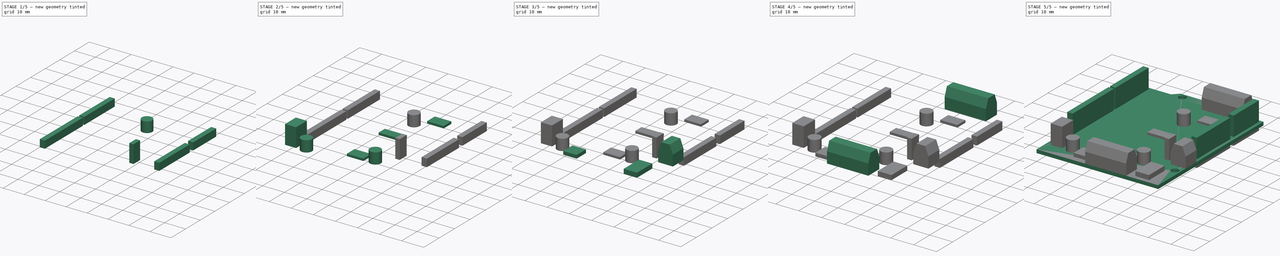
[diagram: build sequence overview — one tinted view per stage of 5, left to right]
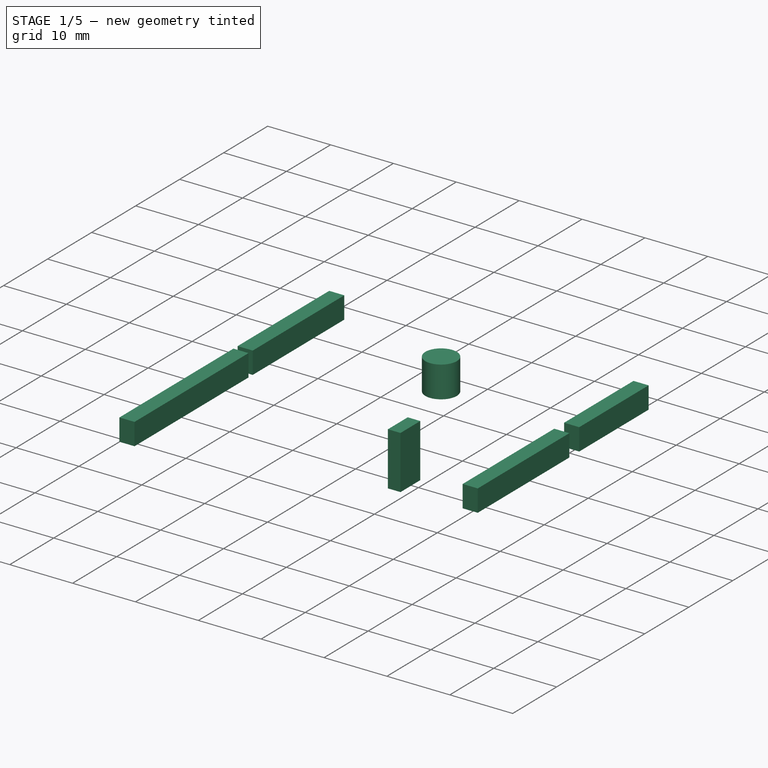
[diagram: stage 1 of 5 — iso view after this stage's code; geometry added in this stage tinted green]
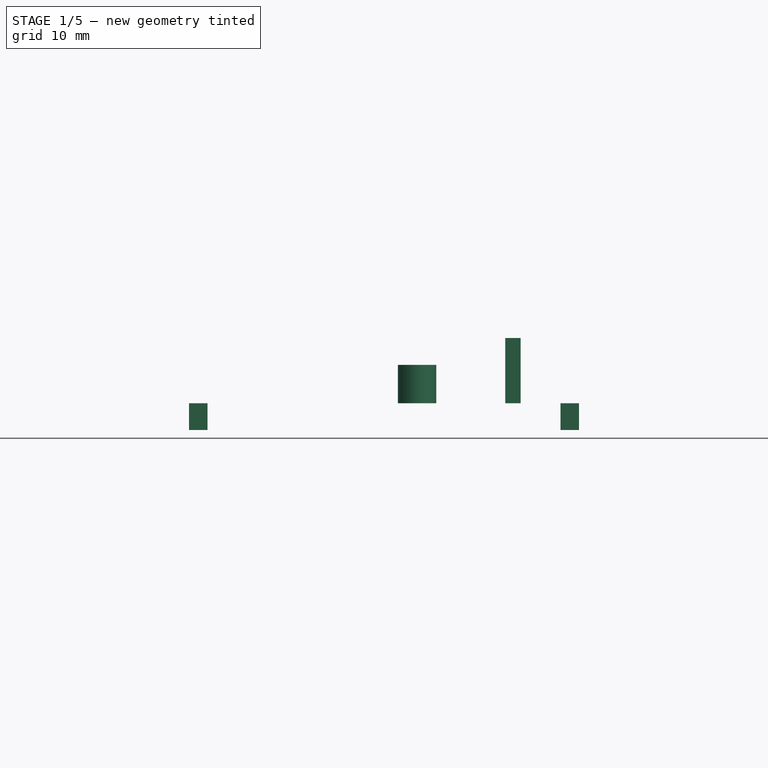
[diagram: stage 1 of 5 — front view after this stage's code; geometry added in this stage tinted green]
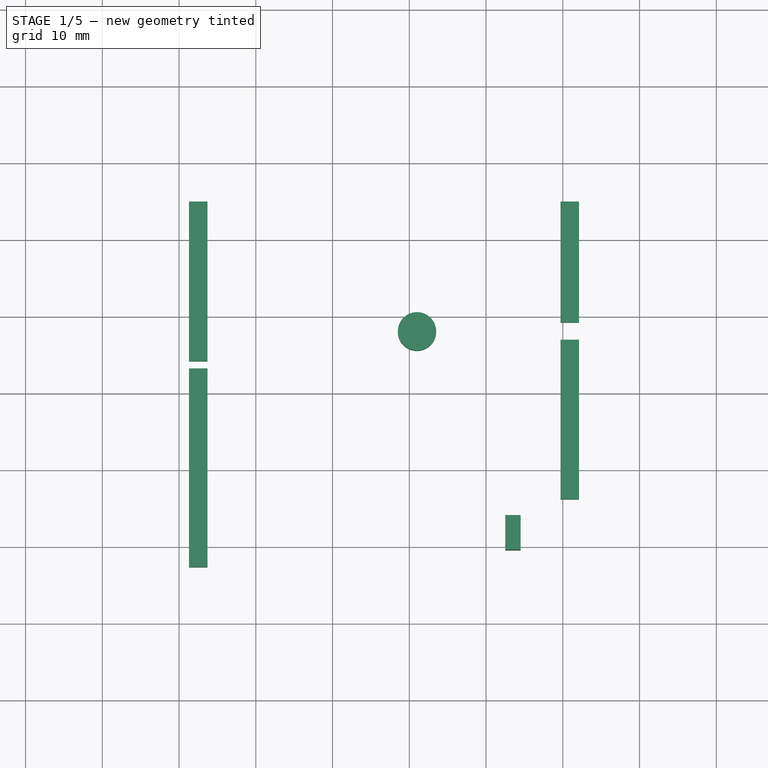
[diagram: stage 1 of 5 — top view after this stage's code; geometry added in this stage tinted green]
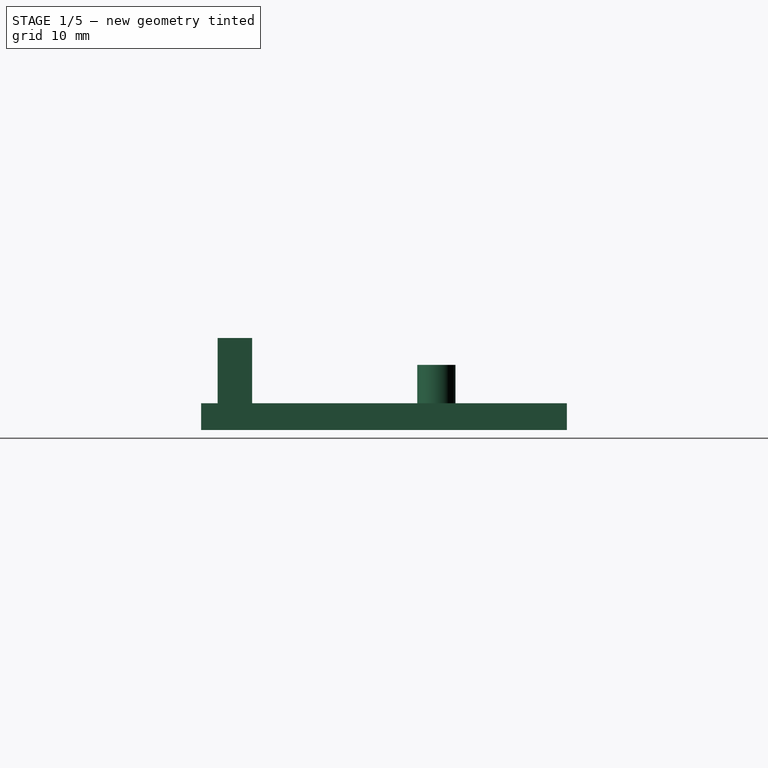
[diagram: stage 1 of 5 — right view after this stage's code; geometry added in this stage tinted green]
FCSTD DOCUMENT  (FreeCAD 0.19R24276 (Git))
Label: Adafruit_MotorShield
License: All rights reserved
LicenseURL: http://en.wikipedia.org/wiki/All_rights_reserved
objects: Sketcher::SketchObject×23, PartDesign::Pad×22, PartDesign::Body×22, PartDesign::Chamfer×6, PartDesign::Pocket×1, App::Part×1
note: 103 computed .brp shape members not serialized (recipe doc carries the construction recipe); baked Part::Feature solids carry a one-line shape summary decoded from their .brp

FEATURE [PartDesign::Body] Body015  label="Cap2"
  Group = -> [Sketch016,Pad015]
  Origin = -> Origin016
  Tip = -> Pad015
FEATURE [Sketcher::SketchObject] Sketch017
  FullyConstrained = true
  MapMode = 5
  Support = -> [XY_Plane017]
  sketch-geometry (1):
    g0: Circle CenterX=31 CenterY=48 CenterZ=0 NormalX=0 NormalY=0 NormalZ=1 AngleXU=0 Radius=2.5
  constraints (3):
    c: Diameter(g0) = 5
    c: DistanceX(g-1,g0) = 31
    c: DistanceY(g-1,g0) = 48
FEATURE [PartDesign::Pad] Pad016
  Direction = (1,1,1)
  Length = 5
  Length2 = 100
  Profile = -> Sketch017
  Type = 0
FEATURE [PartDesign::Body] Body016  label="Cap3"
  Group = -> [Sketch017,Pad016]
  Origin = -> Origin017
  Tip = -> Pad016
FEATURE [Sketcher::SketchObject] Sketch018
  FullyConstrained = true
  MapMode = 5
  Support = -> [XY_Plane018]
  sketch-geometry (4):
    g0: LineSegment StartX=44.5 StartY=24 StartZ=0 EndX=42.5 EndY=24 EndZ=0
    g1: LineSegment StartX=42.5 StartY=24 StartZ=0 EndX=42.5 EndY=19.5 EndZ=0
    g2: LineSegment StartX=42.5 StartY=19.5 StartZ=0 EndX=44.5 EndY=19.5 EndZ=0
    g3: LineSegment StartX=44.5 StartY=19.5 StartZ=0 EndX=44.5 EndY=24 EndZ=0
  constraints (12):
    c: Coincident(g0,g1)
    c: Coincident(g1,g2)
    c: Coincident(g2,g3)
    c: Coincident(g3,g0)
    c: Horizontal(g0)
    c: Horizontal(g2)
    c: Vertical(g1)
    c: Vertical(g3)
    c: Distance(g1) = 4.5
    c: Distance(g0) = 2
    c: DistanceY(g-1,g0) = 24
    c: DistanceX(g-1,g0) = 44.5
FEATURE [PartDesign::Pad] Pad017
  Direction = (1,1,1)
  Length = 8.5
  Length2 = 100
  Profile = -> Sketch018
  Type = 0
FEATURE [PartDesign::Body] Body017  label="PowerJumper"
  Group = -> [Sketch018,Pad017]
  Origin = -> Origin018
  Tip = -> Pad017
FEATURE [Sketcher::SketchObject] Sketch019
  FullyConstrained = true
  MapMode = 5
  Support = -> [XY_Plane019]
  sketch-geometry (4):
    g0: LineSegment StartX=1.3 StartY=43.25 StartZ=0 EndX=3.7 EndY=43.25 EndZ=0
    g1: LineSegment StartX=3.7 StartY=43.25 StartZ=0 EndX=3.7 EndY=17.35 EndZ=0
    g2: LineSegment StartX=3.7 StartY=17.35 StartZ=0 EndX=1.3 EndY=17.35 EndZ=0
    g3: LineSegment StartX=1.3 StartY=17.35 StartZ=0 EndX=1.3 EndY=43.25 EndZ=0
  constraints (12):
    c: Coincident(g0,g1)
    c: Coincident(g1,g2)
    c: Coincident(g2,g3)
    c: Coincident(g3,g0)
    c: Horizontal(g0)
    c: Horizontal(g2)
    c: Vertical(g1)
    c: Vertical(g3)
    c: Distance(g0) = 2.4
    c: DistanceX(g-1,g2) = 1.3
    c: DistanceY(g1,g0) = 25.9
    c: DistanceY(g-1,g0) = 43.25
FEATURE [PartDesign::Pad] Pad018
  Direction = (1,1,1)
  Length = 3.5
  Length2 = 100
  Profile = -> Sketch019
  Reversed = true
  Type = 0
FEATURE [PartDesign::Body] Body018  label="Pins1"
  Group = -> [Sketch019,Pad018]
  Origin = -> Origin019
  Tip = -> Pad018
FEATURE [Sketcher::SketchObject] Sketch020
  FullyConstrained = true
  MapMode = 5
  Support = -> [XY_Plane020]
  sketch-geometry (4):
    g0: LineSegment StartX=1.3 StartY=65 StartZ=0 EndX=3.7 EndY=65 EndZ=0
    g1: LineSegment StartX=3.7 StartY=65 StartZ=0 EndX=3.7 EndY=44.2 EndZ=0
    g2: LineSegment StartX=3.7 StartY=44.2 StartZ=0 EndX=1.3 EndY=44.2 EndZ=0
    g3: LineSegment StartX=1.3 StartY=44.2 StartZ=0 EndX=1.3 EndY=65 EndZ=0
  constraints (12):
    c: Coincident(g0,g1)
    c: Coincident(g1,g2)
    c: Coincident(g2,g3)
    c: Coincident(g3,g0)
    c: Horizontal(g0)
    c: Horizontal(g2)
    c: Vertical(g1)
    c: Vertical(g3)
    c: Distance(g0) = 2.4
    c: DistanceX(g-1,g0) = 1.3
    c: Distance(g1) = 20.8
    c: DistanceY(g-1,g0) = 65
FEATURE [PartDesign::Pad] Pad019
  Direction = (1,1,1)
  Length = 3.5
  Length2 = 100
  Profile = -> Sketch020
  Reversed = true
  Type = 0
FEATURE [PartDesign::Body] Body019  label="Pins2"
  Group = -> [Sketch020,Pad019]
  Origin = -> Origin020
  Tip = -> Pad019
FEATURE [Sketcher::SketchObject] Sketch021
  FullyConstrained = true
  MapMode = 5
  Support = -> [XY_Plane021]
  sketch-geometry (4):
    g0: LineSegment StartX=49.7 StartY=47 StartZ=0 EndX=52.1 EndY=47 EndZ=0
    g1: LineSegment StartX=52.1 StartY=47 StartZ=0 EndX=52.1 EndY=26.2 EndZ=0
    g2: LineSegment StartX=52.1 StartY=26.2 StartZ=0 EndX=49.7 EndY=26.2 EndZ=0
    g3: LineSegment StartX=49.7 StartY=26.2 StartZ=0 EndX=49.7 EndY=47 EndZ=0
  constraints (12):
    c: Coincident(g0,g1)
    c: Coincident(g1,g2)
    c: Coincident(g2,g3)
    c: Coincident(g3,g0)
    c: Horizontal(g0)
    c: Horizontal(g2)
    c: Vertical(g1)
    c: Vertical(g3)
    c: Distance(g0) = 2.4
    c: DistanceX(g-1,g1) = 52.1
    c: Distance(g1) = 20.8
    c: DistanceY(g-1,g0) = 47
FEATURE [PartDesign::Pad] Pad020
  Direction = (1,1,1)
  Length = 3.5
  Length2 = 100
  Profile = -> Sketch021
  Reversed = true
  Type = 0
FEATURE [PartDesign::Body] Body020  label="Pins3"
  Group = -> [Sketch021,Pad020]
  Origin = -> Origin021
  Tip = -> Pad020
FEATURE [Sketcher::SketchObject] Sketch022
  FullyConstrained = true
  MapMode = 5
  Support = -> [XY_Plane022]
  sketch-geometry (4):
    g0: LineSegment StartX=49.7 StartY=65 StartZ=0 EndX=52.1 EndY=65 EndZ=0
    g1: LineSegment StartX=52.1 StartY=65 StartZ=0 EndX=52.1 EndY=49.25 EndZ=0
    g2: LineSegment StartX=52.1 StartY=49.25 StartZ=0 EndX=49.7 EndY=49.25 EndZ=0
    g3: LineSegment StartX=49.7 StartY=49.25 StartZ=0 EndX=49.7 EndY=65 EndZ=0
  constraints (12):
    c: Coincident(g0,g1)
    c: Coincident(g1,g2)
    c: Coincident(g2,g3)
    c: Coincident(g3,g0)
    c: Horizontal(g0)
    c: Horizontal(g2)
    c: Vertical(g1)
    c: Vertical(g3)
    c: Distance(g0) = 2.4
    c: DistanceX(g-1,g1) = 52.1
    c: DistanceY(g-1,g0) = 65
    c: Distance(g3) = 15.75
FEATURE [PartDesign::Pad] Pad021
  Direction = (1,1,1)
  Length = 3.5
  Length2 = 100
  Profile = -> Sketch022
  Reversed = true
  Type = 0
FEATURE [PartDesign::Body] Body021  label="Pin4"
  Group = -> [Sketch022,Pad021]
  Origin = -> Origin022
  Tip = -> Pad021
FEATURE [App::Part] Part  label="MotorShield"
  Group = -> [Body,Body001,Body002,Body003,Body004,Body005,Body006,Body007,Body008,Body009,Body010,Body011,Body012,Body013,Body014,Body015,Body016,Body017,Body018,Body019,Body020,Body021]
  Origin = -> Origin
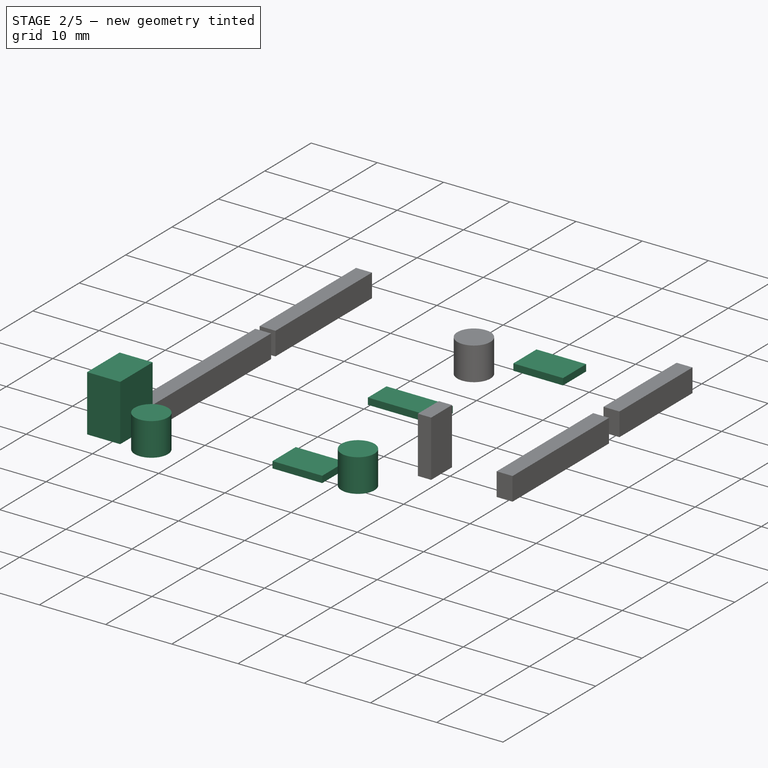
[diagram: stage 2 of 5 — iso view after this stage's code; geometry added in this stage tinted green]
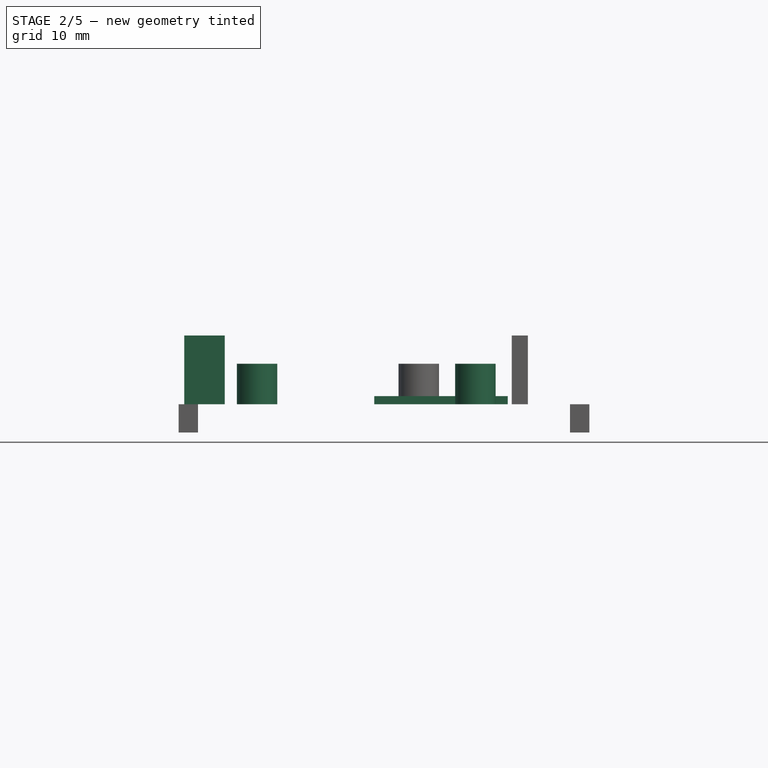
[diagram: stage 2 of 5 — front view after this stage's code; geometry added in this stage tinted green]
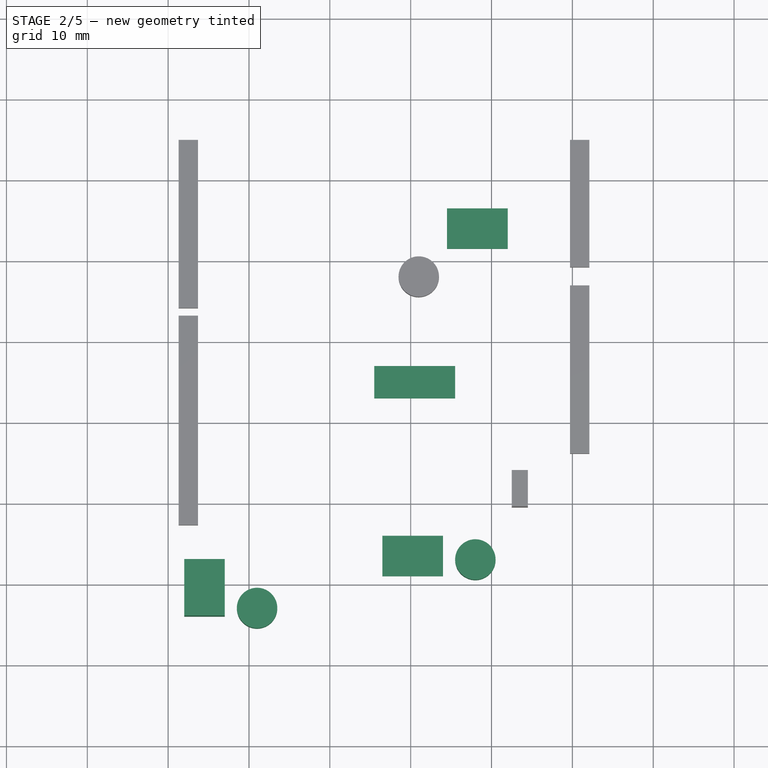
[diagram: stage 2 of 5 — top view after this stage's code; geometry added in this stage tinted green]
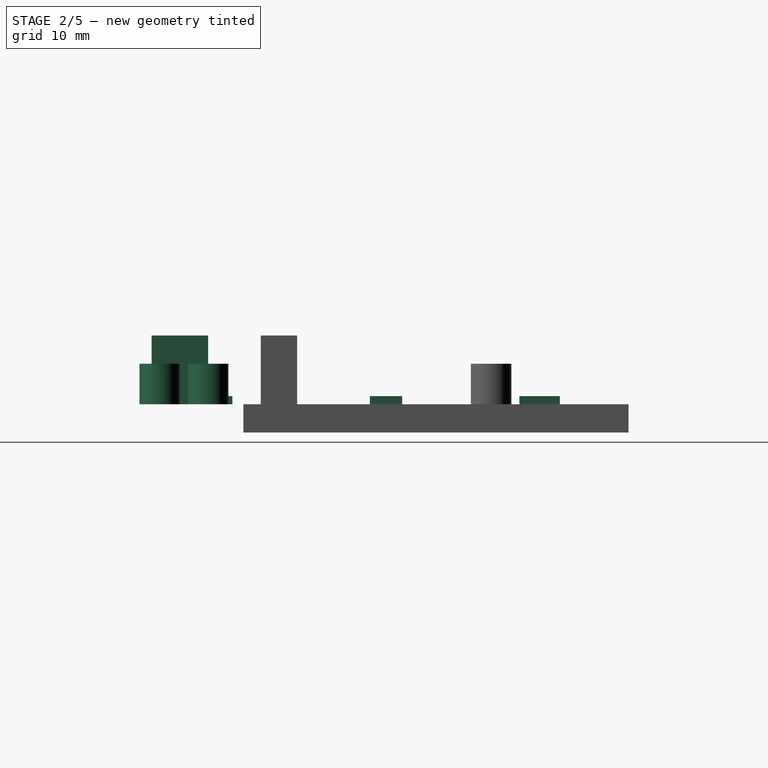
[diagram: stage 2 of 5 — right view after this stage's code; geometry added in this stage tinted green]
FEATURE [PartDesign::Body] Body009  label="FET"
  Group = -> [Sketch010,Pad009]
  Origin = -> Origin010
  Tip = -> Pad009
FEATURE [Sketcher::SketchObject] Sketch011
  FullyConstrained = true
  MapMode = 5
  Support = -> [XY_Plane011]
  sketch-geometry (4):
    g0: LineSegment StartX=34.5 StartY=56.5 StartZ=0 EndX=42 EndY=56.5 EndZ=0
    g1: LineSegment StartX=42 StartY=56.5 StartZ=0 EndX=42 EndY=51.5 EndZ=0
    g2: LineSegment StartX=42 StartY=51.5 StartZ=0 EndX=34.5 EndY=51.5 EndZ=0
    g3: LineSegment StartX=34.5 StartY=51.5 StartZ=0 EndX=34.5 EndY=56.5 EndZ=0
  constraints (12):
    c: Coincident(g0,g1)
    c: Coincident(g1,g2)
    c: Coincident(g2,g3)
    c: Coincident(g3,g0)
    c: Horizontal(g0)
    c: Horizontal(g2)
    c: Vertical(g1)
    c: Vertical(g3)
    c: Distance(g1) = 5
    c: Distance(g0) = 7.5
    c: DistanceX(g-1,g0) = 42
    c: DistanceY(g-1,g0) = 56.5
FEATURE [PartDesign::Pad] Pad010
  Direction = (1,1,1)
  Length = 1
  Length2 = 100
  Profile = -> Sketch011
  Type = 0
FEATURE [PartDesign::Body] Body010  label="HBridge1"
  Group = -> [Sketch011,Pad010]
  Origin = -> Origin011
  Tip = -> Pad010
FEATURE [Sketcher::SketchObject] Sketch012
  FullyConstrained = true
  MapMode = 5
  Support = -> [XY_Plane012]
  sketch-geometry (4):
    g0: LineSegment StartX=26.5 StartY=16 StartZ=0 EndX=34 EndY=16 EndZ=0
    g1: LineSegment StartX=34 StartY=16 StartZ=0 EndX=34 EndY=11 EndZ=0
    g2: LineSegment StartX=34 StartY=11 StartZ=0 EndX=26.5 EndY=11 EndZ=0
    g3: LineSegment StartX=26.5 StartY=11 StartZ=0 EndX=26.5 EndY=16 EndZ=0
  constraints (12):
    c: Coincident(g0,g1)
    c: Coincident(g1,g2)
    c: Coincident(g2,g3)
    c: Coincident(g3,g0)
    c: Horizontal(g0)
    c: Horizontal(g2)
    c: Vertical(g1)
    c: Vertical(g3)
    c: Distance(g0) = 7.5
    c: Distance(g1) = 5
    c: DistanceX(g-1,g0) = 34
    c: DistanceY(g-1,g0) = 16
FEATURE [PartDesign::Pad] Pad011
  Direction = (1,1,1)
  Length = 1
  Length2 = 100
  Profile = -> Sketch012
  Type = 0
FEATURE [PartDesign::Body] Body011  label="HBridge2"
  Group = -> [Sketch012,Pad011]
  Origin = -> Origin012
  Tip = -> Pad011
FEATURE [Sketcher::SketchObject] Sketch013
  FullyConstrained = true
  MapMode = 5
  Support = -> [XY_Plane013]
  sketch-geometry (4):
    g0: LineSegment StartX=25.5 StartY=37 StartZ=0 EndX=35.5 EndY=37 EndZ=0
    g1: LineSegment StartX=35.5 StartY=37 StartZ=0 EndX=35.5 EndY=33 EndZ=0
    g2: LineSegment StartX=35.5 StartY=33 StartZ=0 EndX=25.5 EndY=33 EndZ=0
    g3: LineSegment StartX=25.5 StartY=33 StartZ=0 EndX=25.5 EndY=37 EndZ=0
  constraints (12):
    c: Coincident(g0,g1)
    c: Coincident(g1,g2)
    c: Coincident(g2,g3)
    c: Coincident(g3,g0)
    c: Horizontal(g0)
    c: Horizontal(g2)
    c: Vertical(g1)
    c: Vertical(g3)
    c: Distance(g0) = 10
    c: Distance(g1) = 4
    c: DistanceX(g-1,g0) = 35.5
    c: DistanceY(g-1,g0) = 37
FEATURE [PartDesign::Pad] Pad012
  Direction = (1,1,1)
  Length = 1
  Length2 = 100
  Profile = -> Sketch013
  Type = 0
FEATURE [PartDesign::Body] Body012  label="Chip"
  Group = -> [Sketch013,Pad012]
  Origin = -> Origin013
  Tip = -> Pad012
FEATURE [Sketcher::SketchObject] Sketch014
  FullyConstrained = true
  MapMode = 5
  Support = -> [XY_Plane014]
  sketch-geometry (4):
    g0: LineSegment StartX=2 StartY=13 StartZ=0 EndX=7 EndY=13 EndZ=0
    g1: LineSegment StartX=7 StartY=13 StartZ=0 EndX=7 EndY=6 EndZ=0
    g2: LineSegment StartX=7 StartY=6 StartZ=0 EndX=2 EndY=6 EndZ=0
    g3: LineSegment StartX=2 StartY=6 StartZ=0 EndX=2 EndY=13 EndZ=0
  constraints (12):
    c: Coincident(g0,g1)
    c: Coincident(g1,g2)
    c: Coincident(g2,g3)
    c: Coincident(g3,g0)
    c: Horizontal(g0)
    c: Horizontal(g2)
    c: Vertical(g1)
    c: Vertical(g3)
    c: Distance(g1) = 7
    c: Distance(g0) = 5
    c: DistanceX(g-1,g1) = 7
    c: DistanceY(g-1,g0) = 13
FEATURE [PartDesign::Pad] Pad013
  Direction = (1,1,1)
  Length = 8.5
  Length2 = 100
  Profile = -> Sketch014
  Type = 0
FEATURE [PartDesign::Body] Body013  label="ServoPins"
  Group = -> [Sketch014,Pad013]
  Origin = -> Origin014
  Tip = -> Pad013
FEATURE [Sketcher::SketchObject] Sketch015
  FullyConstrained = true
  MapMode = 5
  Support = -> [XY_Plane015]
  sketch-geometry (1):
    g0: Circle CenterX=11 CenterY=7 CenterZ=0 NormalX=0 NormalY=0 NormalZ=1 AngleXU=0 Radius=2.5
  constraints (3):
    c: Diameter(g0) = 5
    c: DistanceX(g-1,g0) = 11
    c: DistanceY(g-1,g0) = 7
FEATURE [PartDesign::Pad] Pad014
  Direction = (1,1,1)
  Length = 5
  Length2 = 100
  Profile = -> Sketch015
  Type = 0
FEATURE [PartDesign::Body] Body014  label="Cap1"
  Group = -> [Sketch015,Pad014]
  Origin = -> Origin015
  Tip = -> Pad014
FEATURE [Sketcher::SketchObject] Sketch016
  FullyConstrained = true
  MapMode = 5
  Support = -> [XY_Plane016]
  sketch-geometry (1):
    g0: Circle CenterX=38 CenterY=13 CenterZ=0 NormalX=0 NormalY=0 NormalZ=1 AngleXU=0 Radius=2.5
  constraints (3):
    c: Diameter(g0) = 5
    c: DistanceX(g-1,g0) = 38
    c: DistanceY(g-1,g0) = 13
FEATURE [PartDesign::Pad] Pad015
  Direction = (1,1,1)
  Length = 5
  Length2 = 100
  Profile = -> Sketch016
  Type = 0
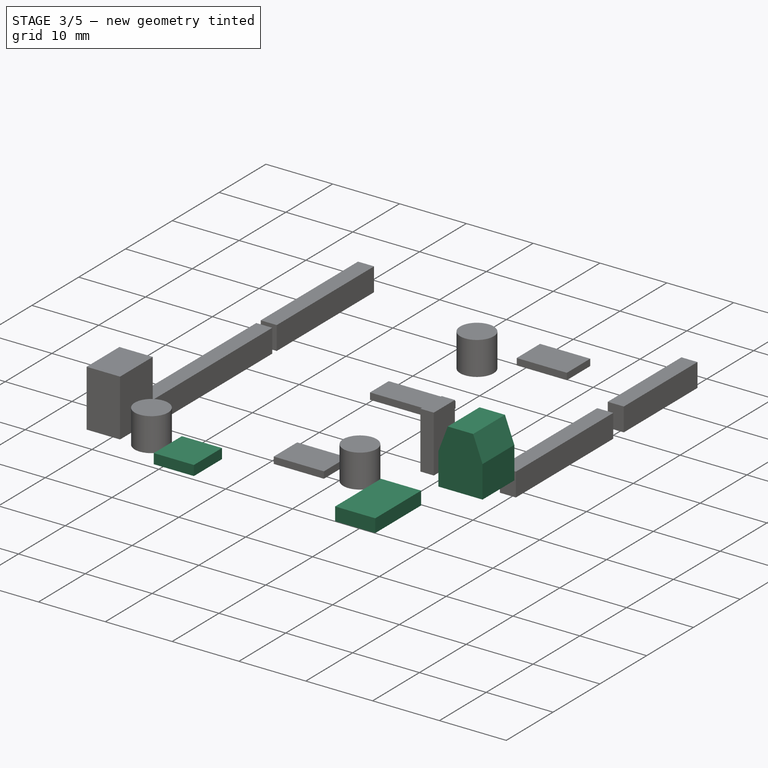
[diagram: stage 3 of 5 — iso view after this stage's code; geometry added in this stage tinted green]
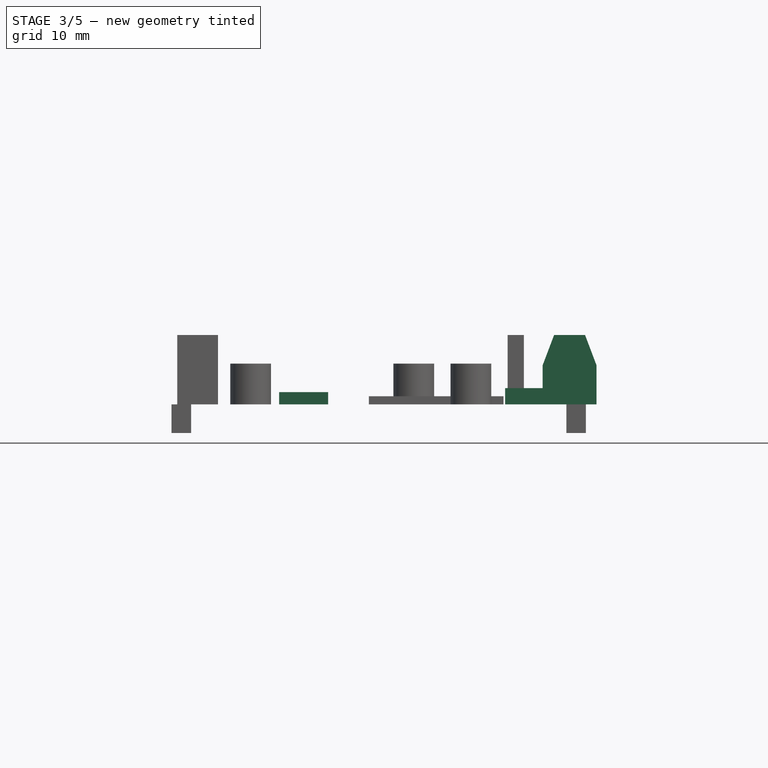
[diagram: stage 3 of 5 — front view after this stage's code; geometry added in this stage tinted green]
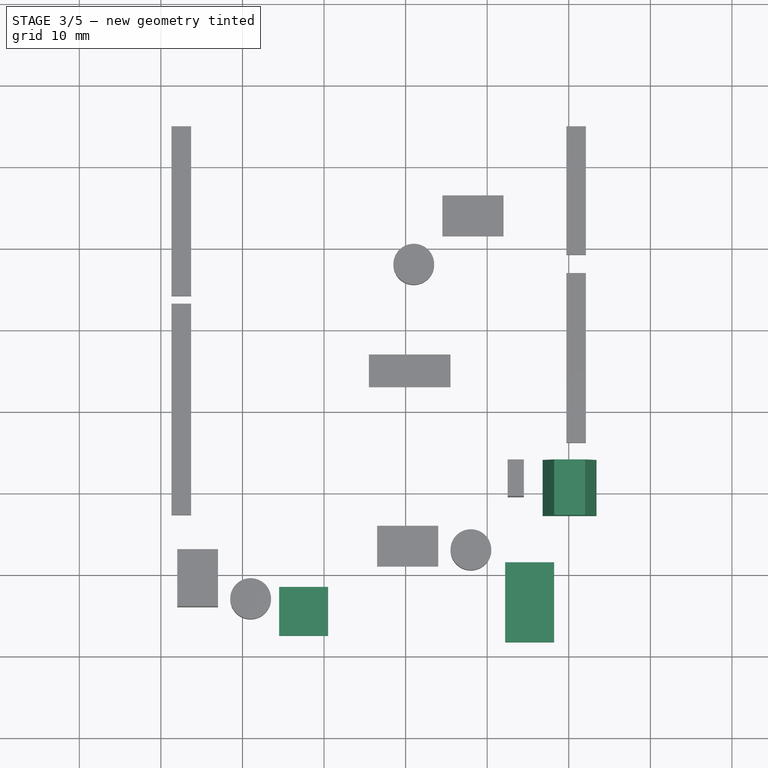
[diagram: stage 3 of 5 — top view after this stage's code; geometry added in this stage tinted green]
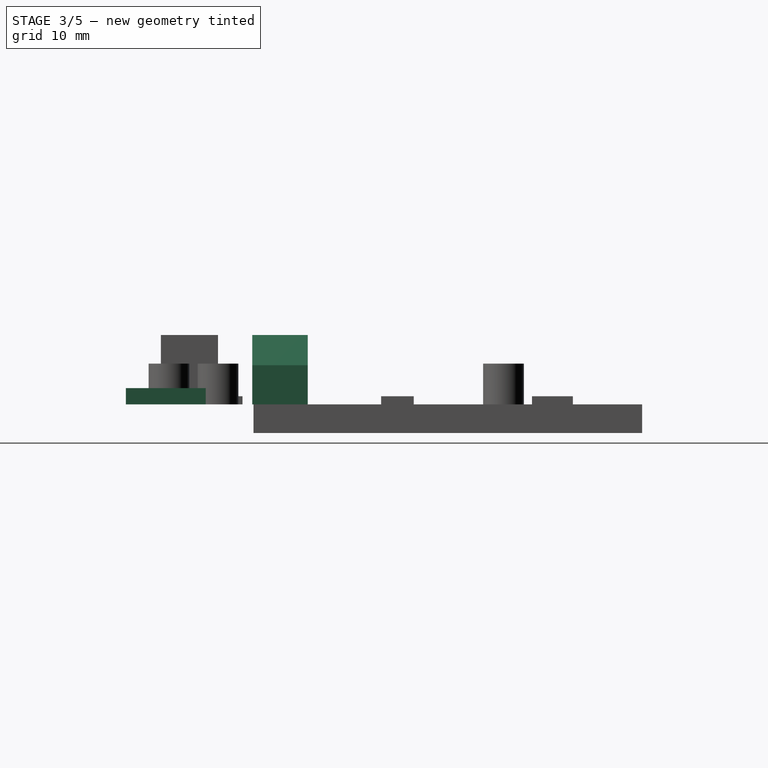
[diagram: stage 3 of 5 — right view after this stage's code; geometry added in this stage tinted green]
FEATURE [PartDesign::Body] Body006  label="M3M4Header"
  Group = -> [Sketch007,Pad006,Chamfer002,Chamfer003]
  Origin = -> Origin007
  Tip = -> Chamfer003
FEATURE [Sketcher::SketchObject] Sketch008
  FullyConstrained = true
  MapMode = 5
  Support = -> [XY_Plane008]
  sketch-geometry (4):
    g0: LineSegment StartX=46.8 StartY=24 StartZ=0 EndX=53.4 EndY=24 EndZ=0
    g1: LineSegment StartX=53.4 StartY=24 StartZ=0 EndX=53.4 EndY=17.2 EndZ=0
    g2: LineSegment StartX=53.4 StartY=17.2 StartZ=0 EndX=46.8 EndY=17.2 EndZ=0
    g3: LineSegment StartX=46.8 StartY=17.2 StartZ=0 EndX=46.8 EndY=24 EndZ=0
  constraints (12):
    c: Coincident(g0,g1)
    c: Coincident(g1,g2)
    c: Coincident(g2,g3)
    c: Coincident(g3,g0)
    c: Horizontal(g0)
    c: Horizontal(g2)
    c: Vertical(g1)
    c: Vertical(g3)
    c: DistanceY(g1,g0) = 6.8
    c: DistanceX(g0,g0) = 6.6
    c: DistanceX(g-1,g1) = 53.4
    c: DistanceY(g-1,g0) = 24
FEATURE [PartDesign::Pad] Pad007
  Direction = (1,1,1)
  Length = 8.5
  Length2 = 100
  Profile = -> Sketch008
  Type = 0
FEATURE [PartDesign::Chamfer] Chamfer004
  Angle = 45
  Base = -> Pad007 [Edge7]
  BaseFeature = -> Pad007
  ChamferType = 1
  FlipDirection = false
  Size = 3.7
  Size2 = 1.4
  SupportTransform = false
FEATURE [PartDesign::Chamfer] Chamfer005
  Angle = 45
  Base = -> Chamfer004 [Edge13]
  BaseFeature = -> Chamfer004
  ChamferType = 1
  FlipDirection = false
  Size = 1.4
  Size2 = 3.7
  SupportTransform = false
FEATURE [PartDesign::Body] Body007  label="PowerHeader"
  Group = -> [Sketch008,Pad007,Chamfer004,Chamfer005]
  Origin = -> Origin008
  Tip = -> Chamfer005
FEATURE [Sketcher::SketchObject] Sketch009
  FullyConstrained = true
  MapMode = 5
  Support = -> [XY_Plane009]
  sketch-geometry (4):
    g0: LineSegment StartX=14.5 StartY=8.5 StartZ=0 EndX=20.5 EndY=8.5 EndZ=0
    g1: LineSegment StartX=20.5 StartY=8.5 StartZ=0 EndX=20.5 EndY=2.5 EndZ=0
    g2: LineSegment StartX=20.5 StartY=2.5 StartZ=0 EndX=14.5 EndY=2.5 EndZ=0
    g3: LineSegment StartX=14.5 StartY=2.5 StartZ=0 EndX=14.5 EndY=8.5 EndZ=0
  constraints (12):
    c: Coincident(g0,g1)
    c: Coincident(g1,g2)
    c: Coincident(g2,g3)
    c: Coincident(g3,g0)
    c: Horizontal(g0)
    c: Horizontal(g2)
    c: Vertical(g1)
    c: Vertical(g3)
    c: Equal(g0,g1)
    c: Distance(g1) = 6
    c: DistanceY(g-1,g0) = 8.5
    c: DistanceX(g-1,g2) = 14.5
FEATURE [PartDesign::Pad] Pad008
  Direction = (1,1,1)
  Length = 1.5
  Length2 = 100
  Profile = -> Sketch009
  Type = 0
FEATURE [PartDesign::Body] Body008  label="ResetButton"
  Group = -> [Sketch009,Pad008]
  Origin = -> Origin009
  Tip = -> Pad008
FEATURE [Sketcher::SketchObject] Sketch010
  FullyConstrained = true
  MapMode = 5
  Support = -> [XY_Plane010]
  sketch-geometry (4):
    g0: LineSegment StartX=42.2 StartY=11.5 StartZ=0 EndX=48.2 EndY=11.5 EndZ=0
    g1: LineSegment StartX=48.2 StartY=11.5 StartZ=0 EndX=48.2 EndY=1.7 EndZ=0
    g2: LineSegment StartX=48.2 StartY=1.7 StartZ=0 EndX=42.2 EndY=1.7 EndZ=0
    g3: LineSegment StartX=42.2 StartY=1.7 StartZ=0 EndX=42.2 EndY=11.5 EndZ=0
  constraints (12):
    c: Coincident(g0,g1)
    c: Coincident(g1,g2)
    c: Coincident(g2,g3)
    c: Coincident(g3,g0)
    c: Horizontal(g0)
    c: Horizontal(g2)
    c: Vertical(g1)
    c: Vertical(g3)
    c: DistanceY(g1,g0) = 9.8
    c: DistanceX(g0,g0) = 6
    c: DistanceY(g-1,g0) = 11.5
    c: DistanceX(g-1,g1) = 48.2
FEATURE [PartDesign::Pad] Pad009
  Direction = (1,1,1)
  Length = 2
  Length2 = 100
  Profile = -> Sketch010
  Type = 0
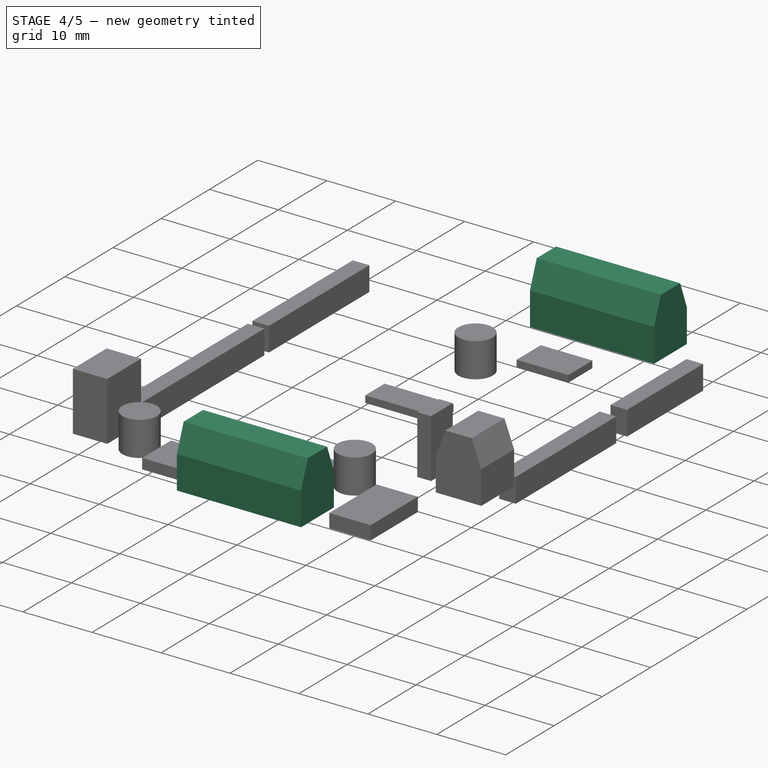
[diagram: stage 4 of 5 — iso view after this stage's code; geometry added in this stage tinted green]
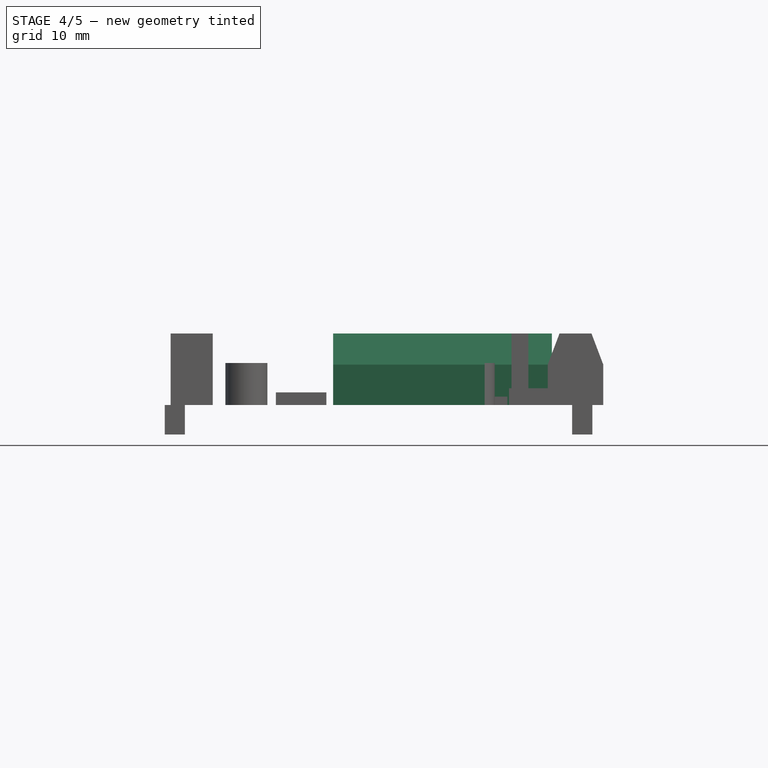
[diagram: stage 4 of 5 — front view after this stage's code; geometry added in this stage tinted green]
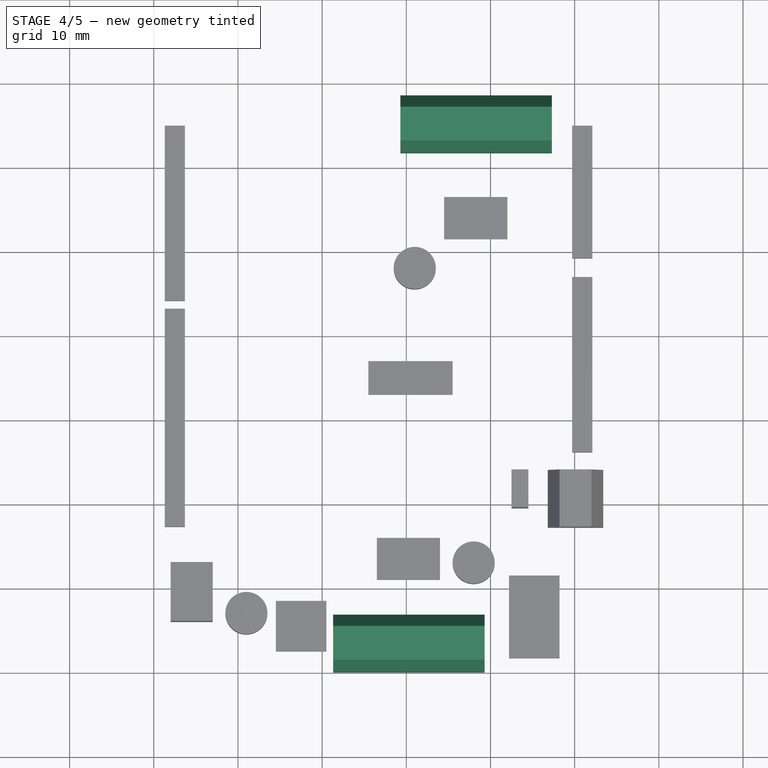
[diagram: stage 4 of 5 — top view after this stage's code; geometry added in this stage tinted green]
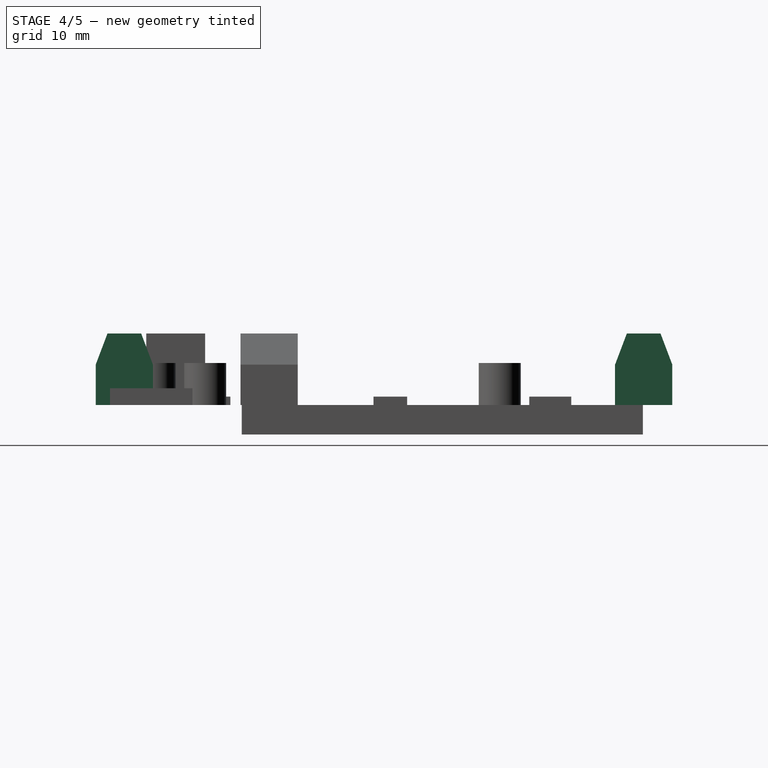
[diagram: stage 4 of 5 — right view after this stage's code; geometry added in this stage tinted green]
FEATURE [PartDesign::Body] Body004  label="Header4_6pin"
  Group = -> [Sketch005,Pad004]
  Origin = -> Origin005
  Tip = -> Pad004
FEATURE [Sketcher::SketchObject] Sketch006
  FullyConstrained = false
  MapMode = 5
  Support = -> [XY_Plane006]
  sketch-geometry (5):
    g0: LineSegment StartX=21.3 StartY=6.8 StartZ=0 EndX=39.3 EndY=6.8 EndZ=0
    g1: LineSegment StartX=39.3 StartY=6.8 StartZ=0 EndX=39.3 EndY=0 EndZ=0
    g2: LineSegment StartX=39.3 StartY=0 StartZ=0 EndX=21.3 EndY=0 EndZ=0
    g3: LineSegment StartX=21.3 StartY=0 StartZ=0 EndX=21.3 EndY=6.8 EndZ=0
    g4: LineSegment StartX=0 StartY=0 StartZ=0 EndX=62.8134 EndY=0 EndZ=0
  constraints (14):
    c: Coincident(g0,g1)
    c: Coincident(g1,g2)
    c: Coincident(g2,g3)
    c: Coincident(g3,g0)
    c: Horizontal(g0)
    c: Horizontal(g2)
    c: Vertical(g1)
    c: Vertical(g3)
    c: DistanceY(g1,g0) = 6.8
    c: DistanceX(g0,g0) = 18
    c: DistanceX(g-1,g1) = 39.3
    c: Coincident(g4,g-1)
    c: PointOnObject(g4,g-1)
    c: PointOnObject(g2,g4)
FEATURE [PartDesign::Pad] Pad005
  Direction = (1,1,1)
  Length = 8.5
  Length2 = 100
  Profile = -> Sketch006
  Type = 0
FEATURE [PartDesign::Chamfer] Chamfer
  Angle = 45
  Base = -> Pad005 [Edge10]
  BaseFeature = -> Pad005
  ChamferType = 1
  FlipDirection = false
  Size = 3.7
  Size2 = 1.4
  SupportTransform = false
FEATURE [PartDesign::Chamfer] Chamfer001
  Angle = 45
  Base = -> Chamfer [Edge13]
  BaseFeature = -> Chamfer
  ChamferType = 1
  FlipDirection = false
  Size = 1.4
  Size2 = 3.7
  SupportTransform = false
FEATURE [PartDesign::Body] Body005  label="M1M2Header"
  Group = -> [Sketch006,Pad005,Chamfer,Chamfer001]
  Origin = -> Origin006
  Tip = -> Chamfer001
FEATURE [Sketcher::SketchObject] Sketch007
  FullyConstrained = true
  MapMode = 5
  Support = -> [XY_Plane007]
  sketch-geometry (4):
    g0: LineSegment StartX=29.3 StartY=68.5 StartZ=0 EndX=47.3 EndY=68.5 EndZ=0
    g1: LineSegment StartX=47.3 StartY=68.5 StartZ=0 EndX=47.3 EndY=61.7 EndZ=0
    g2: LineSegment StartX=47.3 StartY=61.7 StartZ=0 EndX=29.3 EndY=61.7 EndZ=0
    g3: LineSegment StartX=29.3 StartY=61.7 StartZ=0 EndX=29.3 EndY=68.5 EndZ=0
  constraints (12):
    c: Coincident(g0,g1)
    c: Coincident(g1,g2)
    c: Coincident(g2,g3)
    c: Coincident(g3,g0)
    c: Horizontal(g0)
    c: Horizontal(g2)
    c: Vertical(g1)
    c: Vertical(g3)
    c: DistanceX(g0,g0) = 18
    c: DistanceY(g1,g0) = 6.8
    c: DistanceY(g-1,g0) = 68.5
    c: DistanceX(g-1,g0) = 47.3
FEATURE [PartDesign::Pad] Pad006
  Direction = (1,1,1)
  Length = 8.5
  Length2 = 100
  Profile = -> Sketch007
  Type = 0
FEATURE [PartDesign::Chamfer] Chamfer002
  Angle = 45
  Base = -> Pad006 [Edge4]
  BaseFeature = -> Pad006
  ChamferType = 1
  FlipDirection = false
  Size = 3.7
  Size2 = 1.4
  SupportTransform = false
FEATURE [PartDesign::Chamfer] Chamfer003
  Angle = 45
  Base = -> Chamfer002 [Edge15]
  BaseFeature = -> Chamfer002
  ChamferType = 1
  FlipDirection = false
  Size = 1.4
  Size2 = 3.7
  SupportTransform = false
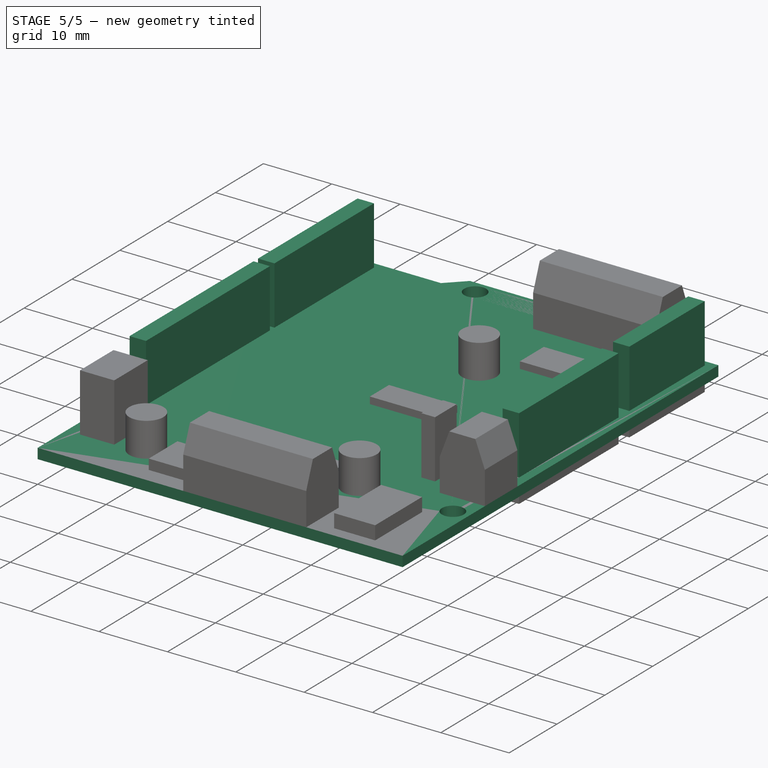
[diagram: stage 5 of 5 — iso view after this stage's code; geometry added in this stage tinted green]
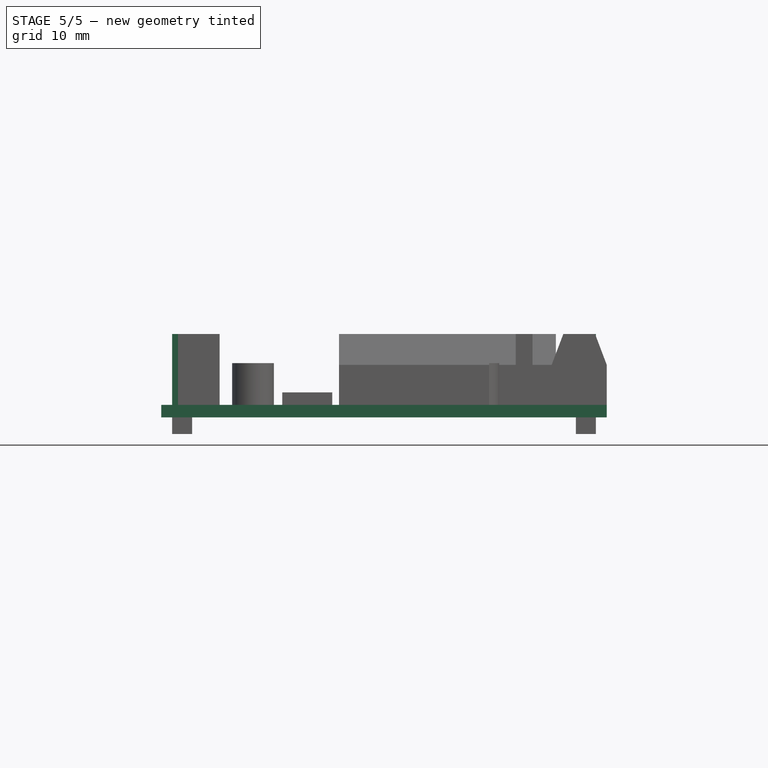
[diagram: stage 5 of 5 — front view after this stage's code; geometry added in this stage tinted green]
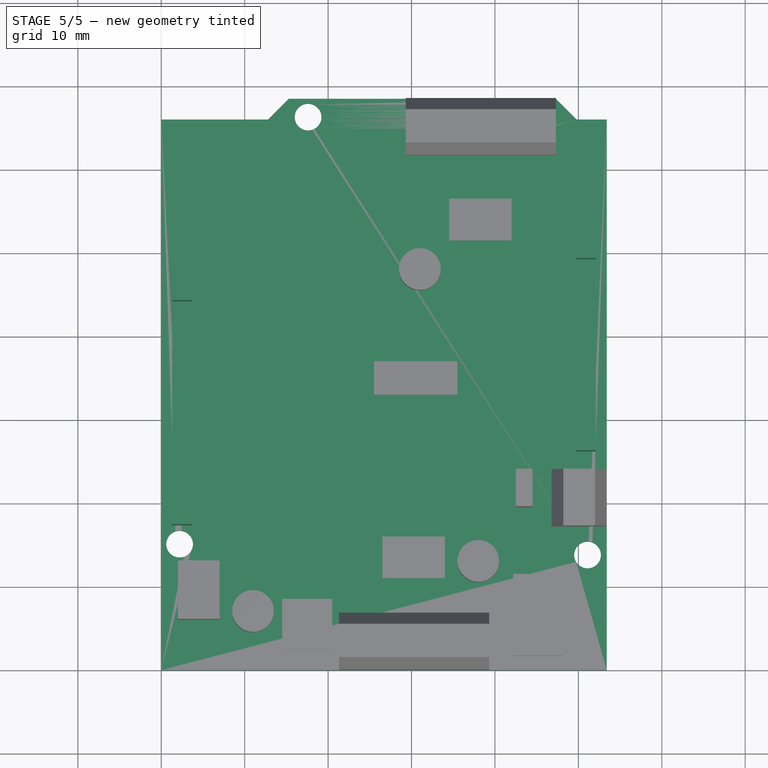
[diagram: stage 5 of 5 — top view after this stage's code; geometry added in this stage tinted green]
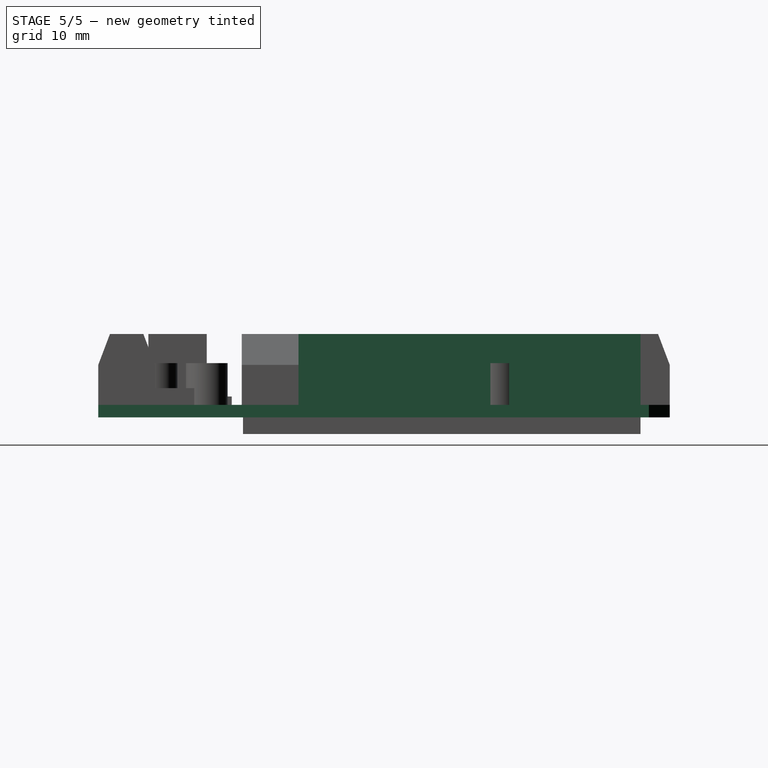
[diagram: stage 5 of 5 — right view after this stage's code; geometry added in this stage tinted green]
FEATURE [Sketcher::SketchObject] Sketch
  FullyConstrained = true
  MapMode = 5
  Support = -> [XY_Plane001]
  sketch-geometry (8):
    g0: LineSegment StartX=-7e-16 StartY=0 StartZ=0 EndX=53.4 EndY=0 EndZ=0
    g1: LineSegment StartX=53.4 StartY=0 StartZ=0 EndX=53.4 EndY=66 EndZ=0
    g2: LineSegment StartX=-7e-16 StartY=66 StartZ=0 EndX=-7e-16 EndY=0 EndZ=0
    g3: LineSegment StartX=12.8 StartY=66 StartZ=0 EndX=15.3 EndY=68.5 EndZ=0
    g4: LineSegment StartX=15.3 StartY=68.5 StartZ=0 EndX=47.3 EndY=68.5 EndZ=0
    g5: LineSegment StartX=47.3 StartY=68.5 StartZ=0 EndX=49.8 EndY=66 EndZ=0
    g6: LineSegment StartX=-7e-16 StartY=66 StartZ=0 EndX=12.8 EndY=66 EndZ=0
    g7: LineSegment StartX=49.8 StartY=66 StartZ=0 EndX=53.4 EndY=66 EndZ=0
  constraints (23):
    c: Coincident(g0,g1)
    c: Coincident(g2,g0)
    c: Horizontal(g0)
    c: Vertical(g1)
    c: Vertical(g2)
    c: Coincident(g0,g-1)
    c: Coincident(g4,g3)
    c: Horizontal(g4)
    c: Coincident(g5,g4)
    c: Coincident(g6,g2)
    c: Coincident(g6,g3)
    c: Horizontal(g6)
    c: Coincident(g7,g5)
    c: Coincident(g7,g1)
    c: Horizontal(g7)
    c: Equal(g3,g5)
    c: Angle(g3,g6) = 2.35619
    c: Angle(g7,g5) = 2.35619
    c: DistanceX(g0,g0) = 53.4
    c: DistanceY(g0,g2) = 66
    c: DistanceY(g0,g3) = 68.5
    c: DistanceX(g2,g3) = 15.3
    c: Distance(g4) = 32
FEATURE [PartDesign::Pad] Pad
  Direction = (1,1,1)
  Length = 1.5
  Length2 = 100
  Profile = -> Sketch
  Reversed = true
  Type = 0
FEATURE [Sketcher::SketchObject] Sketch001
  FullyConstrained = true
  MapMode = 5
  Support = -> [XY_Plane001]
  sketch-geometry (5):
    g0: Circle CenterX=2.2 CenterY=15.1 CenterZ=0 NormalX=0 NormalY=0 NormalZ=1 AngleXU=0 Radius=1.6
    g1: Circle CenterX=51.1 CenterY=13.8 CenterZ=0 NormalX=0 NormalY=0 NormalZ=1 AngleXU=0 Radius=1.6
    g2: Circle CenterX=17.6 CenterY=66.3 CenterZ=0 NormalX=0 NormalY=0 NormalZ=1 AngleXU=0 Radius=1.6
    g3: Circle CenterX=45.3 CenterY=66.3 CenterZ=0 NormalX=0 NormalY=0 NormalZ=1 AngleXU=0 Radius=1.6
    g4: LineSegment StartX=17.6 StartY=66.3 StartZ=0 EndX=45.3 EndY=66.3 EndZ=0
  constraints (14):
    c: DistanceY(g-1,g0) = 15.1
    c: DistanceX(g-1,g0) = 2.2
    c: Equal(g0,g1)
    c: Equal(g2,g3)
    c: Equal(g3,g1)
    c: Diameter(g0) = 3.2
    c: DistanceX(g-1,g1) = 51.1
    c: DistanceY(g-1,g1) = 13.8
    c: DistanceY(g-1,g2) = 66.3
    c: Coincident(g4,g2)
    c: Coincident(g4,g3)
    c: Horizontal(g4)
    c: DistanceX(g-1,g2) = 17.6
    c: DistanceX(g2,g3) = 27.7
FEATURE [PartDesign::Pocket] Pocket
  BaseFeature = -> Pad
  Length = 5
  Length2 = 100
  Profile = -> Sketch001
  Type = 1
FEATURE [PartDesign::Body] Body  label="MainBoard"
  Group = -> [Sketch,Pad,Sketch001,Pocket]
  Origin = -> Origin001
  Tip = -> Pocket
FEATURE [Sketcher::SketchObject] Sketch002
  FullyConstrained = true
  MapMode = 5
  Support = -> [XY_Plane002]
  sketch-geometry (4):
    g0: LineSegment StartX=1.3 StartY=43.25 StartZ=0 EndX=3.7 EndY=43.25 EndZ=0
    g1: LineSegment StartX=3.7 StartY=43.25 StartZ=0 EndX=3.7 EndY=17.35 EndZ=0
    g2: LineSegment StartX=3.7 StartY=17.35 StartZ=0 EndX=1.3 EndY=17.35 EndZ=0
    g3: LineSegment StartX=1.3 StartY=17.35 StartZ=0 EndX=1.3 EndY=43.25 EndZ=0
  constraints (12):
    c: Coincident(g0,g1)
    c: Coincident(g1,g2)
    c: Coincident(g2,g3)
    c: Coincident(g3,g0)
    c: Horizontal(g0)
    c: Horizontal(g2)
    c: Vertical(g1)
    c: Vertical(g3)
    c: DistanceX(g0,g0) = 2.4
    c: DistanceY(g2,g0) = 25.9
    c: DistanceX(g-1,g2) = 1.3
    c: DistanceY(g-1,g0) = 43.25
FEATURE [PartDesign::Pad] Pad001
  Direction = (1,1,1)
  Length = 8.5
  Length2 = 100
  Profile = -> Sketch002
  Type = 0
FEATURE [PartDesign::Body] Body001  label="Header1_10pin"
  Group = -> [Sketch002,Pad001]
  Origin = -> Origin002
  Tip = -> Pad001
FEATURE [Sketcher::SketchObject] Sketch003
  FullyConstrained = true
  MapMode = 5
  Support = -> [XY_Plane003]
  sketch-geometry (4):
    g0: LineSegment StartX=1.3 StartY=65 StartZ=0 EndX=3.7 EndY=65 EndZ=0
    g1: LineSegment StartX=3.7 StartY=65 StartZ=0 EndX=3.7 EndY=44.2 EndZ=0
    g2: LineSegment StartX=3.7 StartY=44.2 StartZ=0 EndX=1.3 EndY=44.2 EndZ=0
    g3: LineSegment StartX=1.3 StartY=44.2 StartZ=0 EndX=1.3 EndY=65 EndZ=0
  constraints (12):
    c: Coincident(g0,g1)
    c: Coincident(g1,g2)
    c: Coincident(g2,g3)
    c: Coincident(g3,g0)
    c: Horizontal(g0)
    c: Horizontal(g2)
    c: Vertical(g1)
    c: Vertical(g3)
    c: DistanceX(g0,g0) = 2.4
    c: DistanceX(g-1,g2) = 1.3
    c: DistanceY(g-1,g0) = 65
    c: DistanceY(g2,g0) = 20.8
FEATURE [PartDesign::Pad] Pad002
  Direction = (1,1,1)
  Length = 8.5
  Length2 = 100
  Profile = -> Sketch003
  Type = 0
FEATURE [PartDesign::Body] Body002  label="Header2_8pin"
  Group = -> [Sketch003,Pad002]
  Origin = -> Origin003
  Tip = -> Pad002
FEATURE [Sketcher::SketchObject] Sketch004
  FullyConstrained = true
  MapMode = 5
  Support = -> [XY_Plane004]
  sketch-geometry (4):
    g0: LineSegment StartX=49.7 StartY=47 StartZ=0 EndX=52.1 EndY=47 EndZ=0
    g1: LineSegment StartX=52.1 StartY=47 StartZ=0 EndX=52.1 EndY=26.2 EndZ=0
    g2: LineSegment StartX=52.1 StartY=26.2 StartZ=0 EndX=49.7 EndY=26.2 EndZ=0
    g3: LineSegment StartX=49.7 StartY=26.2 StartZ=0 EndX=49.7 EndY=47 EndZ=0
  constraints (12):
    c: Coincident(g0,g1)
    c: Coincident(g1,g2)
    c: Coincident(g2,g3)
    c: Coincident(g3,g0)
    c: Horizontal(g0)
    c: Horizontal(g2)
    c: Vertical(g1)
    c: Vertical(g3)
    c: DistanceX(g0,g0) = 2.4
    c: DistanceX(g-1,g1) = 52.1
    c: DistanceY(g2,g0) = 20.8
    c: DistanceY(g-1,g0) = 47
FEATURE [PartDesign::Pad] Pad003
  Direction = (1,1,1)
  Length = 8.5
  Length2 = 100
  Profile = -> Sketch004
  Type = 0
FEATURE [PartDesign::Body] Body003  label="Header3_8pin"
  Group = -> [Sketch004,Pad003]
  Origin = -> Origin004
  Tip = -> Pad003
FEATURE [Sketcher::SketchObject] Sketch005
  FullyConstrained = true
  MapMode = 5
  Support = -> [XY_Plane005]
  sketch-geometry (4):
    g0: LineSegment StartX=49.7 StartY=65 StartZ=0 EndX=52.1 EndY=65 EndZ=0
    g1: LineSegment StartX=52.1 StartY=65 StartZ=0 EndX=52.1 EndY=49.25 EndZ=0
    g2: LineSegment StartX=52.1 StartY=49.25 StartZ=0 EndX=49.7 EndY=49.25 EndZ=0
    g3: LineSegment StartX=49.7 StartY=49.25 StartZ=0 EndX=49.7 EndY=65 EndZ=0
  constraints (12):
    c: Coincident(g0,g1)
    c: Coincident(g1,g2)
    c: Coincident(g2,g3)
    c: Coincident(g3,g0)
    c: Horizontal(g0)
    c: Horizontal(g2)
    c: Vertical(g1)
    c: Vertical(g3)
    c: DistanceX(g0,g0) = 2.4
    c: DistanceX(g-1,g1) = 52.1
    c: DistanceY(g-1,g0) = 65
    c: DistanceY(g1,g0) = 15.75
FEATURE [PartDesign::Pad] Pad004
  Direction = (1,1,1)
  Length = 8.5
  Length2 = 100
  Profile = -> Sketch005
  Type = 0
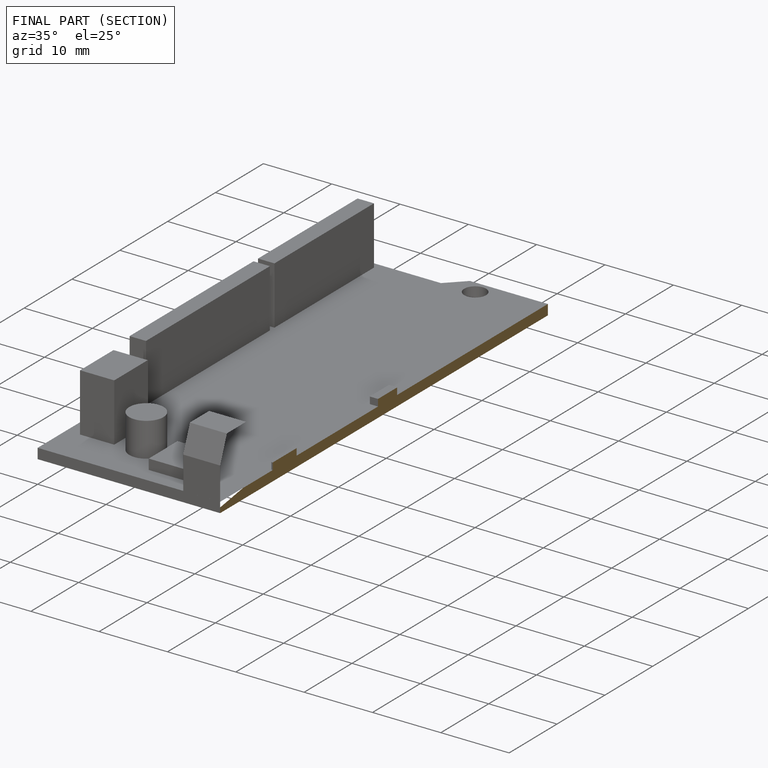
[diagram: finished part — half-section view (interior)]
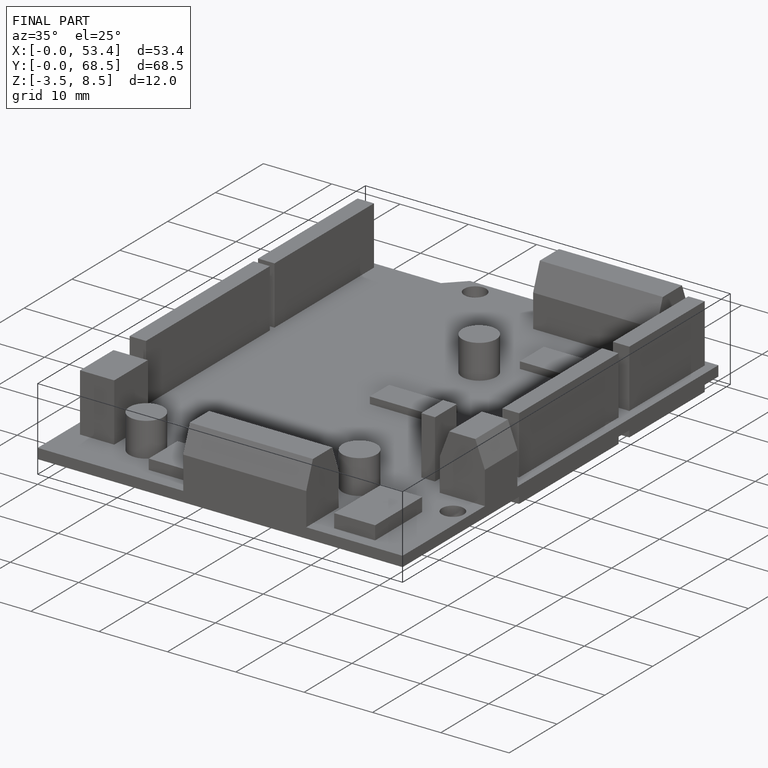
[diagram: finished part — iso view with bounding-box wireframe]
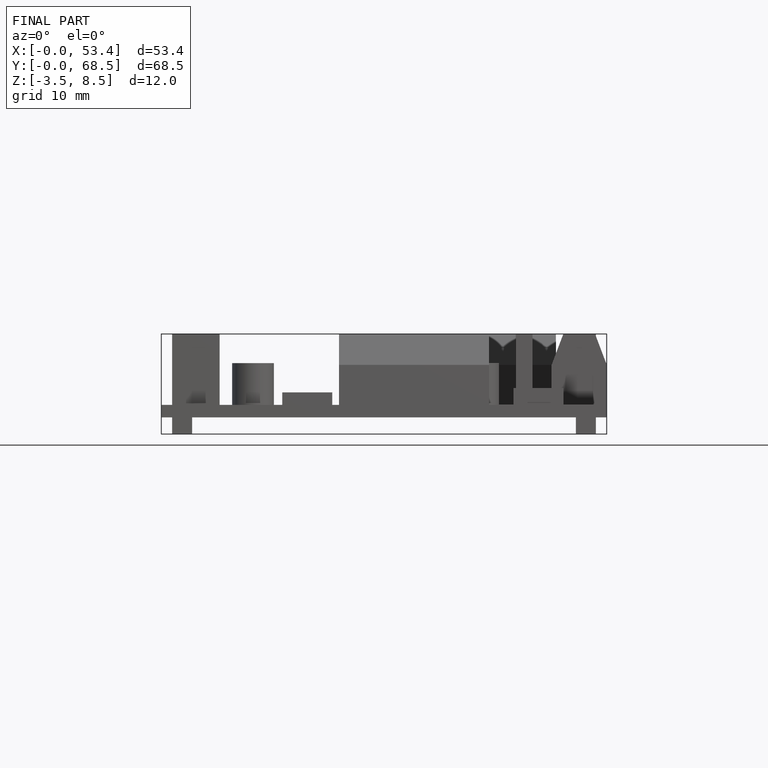
[diagram: finished part — front view with bounding-box wireframe]
